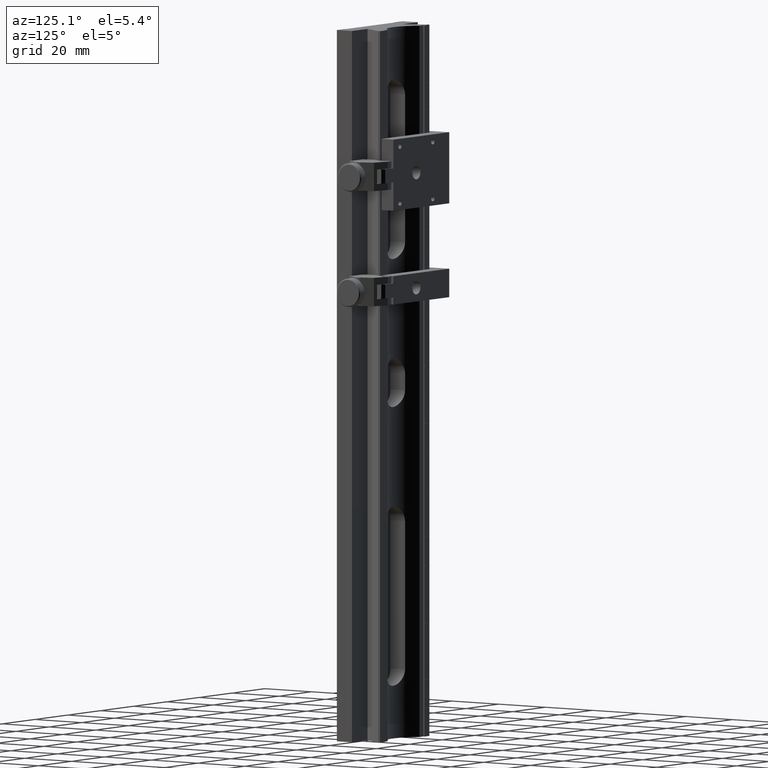
[diagram: clean part render]
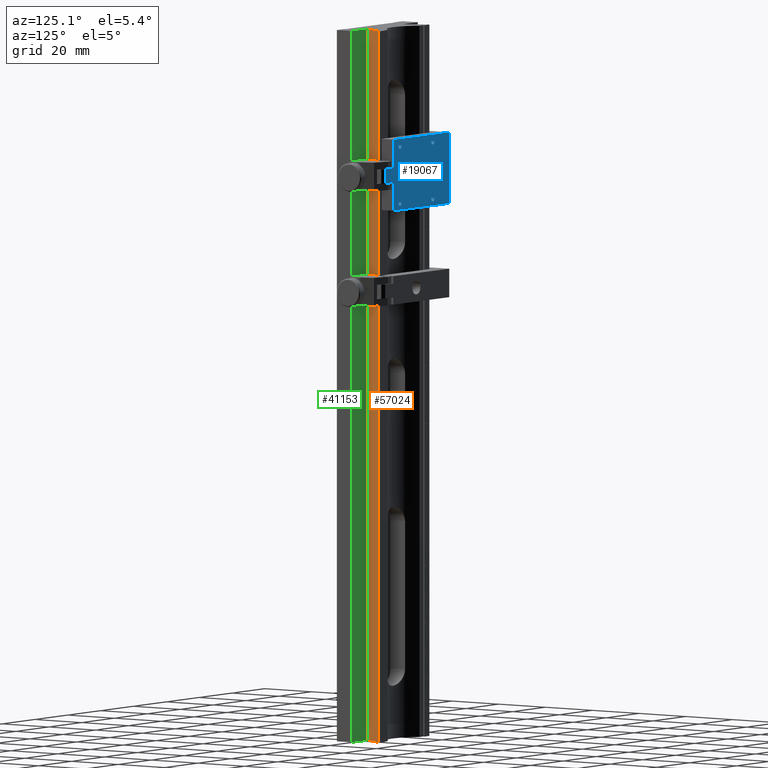
[diagram: same view with three faces highlighted in distinct colors, each labeled with its STEP entity id]
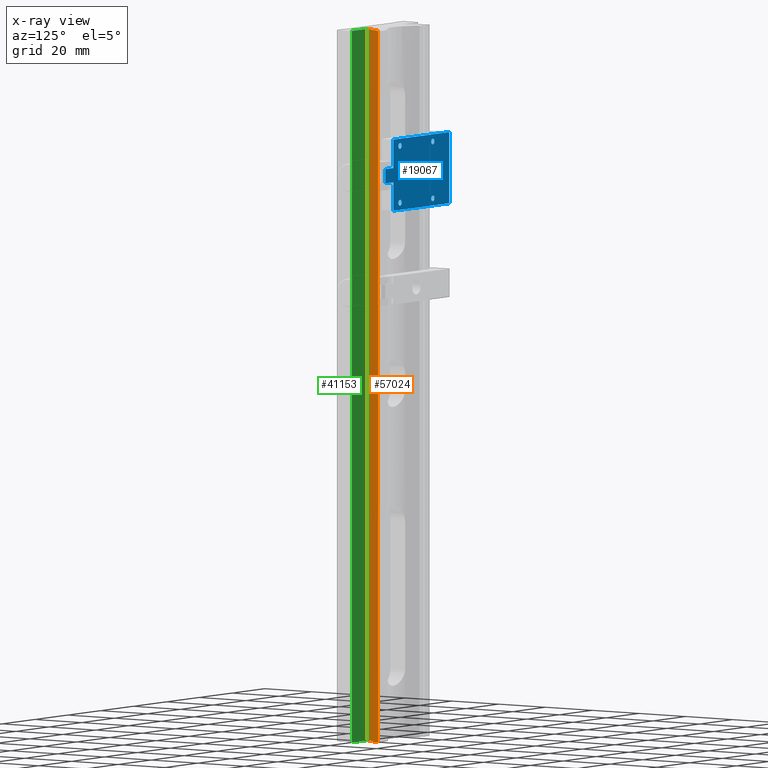
[diagram: x-ray of the same camera — body ghosted, the three highlighted faces saturated]
A machine part, auxiliary view with three faces highlighted in distinct colors.
The next image is the same camera in x-ray (body ghosted, the three faces saturated) — at least one of them is partly hidden behind the body in this view.
Their STEP definitions:

[orange] entity #57024 — the highlighted planar face has unit normal (-0.866, 0.5, 0).
#3482 = VERTEX_POINT ( 'NONE', #76910 ) ;
#4926 = CARTESIAN_POINT ( 'NONE',  ( -6.106594859342999726, 10.67718597128058100, -41.66666666666665009 ) ) ;
#6473 = CARTESIAN_POINT ( 'NONE',  ( -10.51407214745487906, 3.043211375065002944, -125.0000000000000000 ) ) ;
#7787 = CARTESIAN_POINT ( 'NONE',  ( -9.044913051417598382, 5.587869573803525114, -125.0000000000000000 ) ) ;
#8732 = EDGE_CURVE ( 'NONE', #51295, #71722, #48843, .T. ) ;
#9039 = ORIENTED_EDGE ( 'NONE', *, *, #8732, .F. ) ;
#13033 = AXIS2_PLACEMENT_3D ( 'NONE', #17189, #84847, #44503 ) ;
#13546 = B_SPLINE_CURVE_WITH_KNOTS ( 'NONE', 3,
 ( #6473, #68277, #81256, #33349 ),
 .UNSPECIFIED., .F., .F.,
 ( 4, 4 ),
 ( 0.000000000000000000, 1.000000000000000000 ),
 .UNSPECIFIED. ) ;
#17003 = CARTESIAN_POINT ( 'NONE',  ( -10.51407214745487906, 3.043211375065002944, 125.0000000000000000 ) ) ;
#17189 = CARTESIAN_POINT ( 'NONE',  ( -10.51407214745487906, 3.043211375065002500, 125.0000000000000000 ) ) ;
#25099 = CARTESIAN_POINT ( 'NONE',  ( -6.106594859342999726, 10.67718597128058100, 125.0000000000000000 ) ) ;
#30195 = CARTESIAN_POINT ( 'NONE',  ( -7.575753955380298166, 8.132527772542049505, 125.0000000000000000 ) ) ;
#32915 = CARTESIAN_POINT ( 'NONE',  ( -6.106594859342999726, 10.67718597128058100, 125.0000000000000000 ) ) ;
#33349 = CARTESIAN_POINT ( 'NONE',  ( -10.51407214745487906, 3.043211375065002944, 125.0000000000000000 ) ) ;
#34921 = EDGE_CURVE ( 'NONE', #71722, #47797, #78199, .T. ) ;
#35107 = CARTESIAN_POINT ( 'NONE',  ( -7.575753955380319482, 8.132527772542049505, -125.0000000000000000 ) ) ;
#35358 = EDGE_CURVE ( 'NONE', #3482, #47797, #83459, .T. ) ;
#36453 = EDGE_LOOP ( 'NONE', ( #48806, #9039, #48173, #42064 ) ) ;
#38970 = CARTESIAN_POINT ( 'NONE',  ( -6.106594859342999726, 10.67718597128058100, 41.66666666666665009 ) ) ;
#42064 = ORIENTED_EDGE ( 'NONE', *, *, #35358, .T. ) ;
#42266 = CARTESIAN_POINT ( 'NONE',  ( -6.106594859342999726, 10.67718597128058100, -125.0000000000000000 ) ) ;
#43624 = CARTESIAN_POINT ( 'NONE',  ( -10.51407214745487906, 3.043211375065002944, 125.0000000000000000 ) ) ;
#44503 = DIRECTION ( 'NONE',  ( 0.000000000000000000, 0.000000000000000000, 1.000000000000000000 ) ) ;
#44974 = PLANE ( 'NONE',  #13033 ) ;
#47797 = VERTEX_POINT ( 'NONE', #64213 ) ;
#48173 = ORIENTED_EDGE ( 'NONE', *, *, #70462, .F. ) ;
#48806 = ORIENTED_EDGE ( 'NONE', *, *, #34921, .F. ) ;
#48843 = B_SPLINE_CURVE_WITH_KNOTS ( 'NONE', 3,
 ( #43624, #64230, #30195, #57528 ),
 .UNSPECIFIED., .F., .F.,
 ( 4, 4 ),
 ( 0.000000000000000000, 1.000000000000000000 ),
 .UNSPECIFIED. ) ;
#51295 = VERTEX_POINT ( 'NONE', #17003 ) ;
#57024 = ADVANCED_FACE ( 'NONE', ( #64232 ), #44974, .F. ) ;
#57528 = CARTESIAN_POINT ( 'NONE',  ( -6.106594859342999726, 10.67718597128058100, 125.0000000000000000 ) ) ;
#64213 = CARTESIAN_POINT ( 'NONE',  ( -6.106594859342999726, 10.67718597128058100, -125.0000000000000000 ) ) ;
#64230 = CARTESIAN_POINT ( 'NONE',  ( -9.044913051417598382, 5.587869573803525114, 125.0000000000000000 ) ) ;
#64232 = FACE_OUTER_BOUND ( 'NONE', #36453, .T. ) ;
#68277 = CARTESIAN_POINT ( 'NONE',  ( -10.51407214745487906, 3.043211375065002500, -41.66666666666665009 ) ) ;
#70462 = EDGE_CURVE ( 'NONE', #3482, #51295, #13546, .T. ) ;
#71722 = VERTEX_POINT ( 'NONE', #32915 ) ;
#76910 = CARTESIAN_POINT ( 'NONE',  ( -10.51407214745487906, 3.043211375065002944, -125.0000000000000000 ) ) ;
#78199 = B_SPLINE_CURVE_WITH_KNOTS ( 'NONE', 3,
 ( #25099, #38970, #4926, #86880 ),
 .UNSPECIFIED., .F., .F.,
 ( 4, 4 ),
 ( 0.000000000000000000, 1.000000000000000000 ),
 .UNSPECIFIED. ) ;
#81256 = CARTESIAN_POINT ( 'NONE',  ( -10.51407214745487906, 3.043211375065002500, 41.66666666666665009 ) ) ;
#83459 = B_SPLINE_CURVE_WITH_KNOTS ( 'NONE', 3,
 ( #84332, #7787, #35107, #42266 ),
 .UNSPECIFIED., .F., .F.,
 ( 4, 4 ),
 ( 0.000000000000000000, 1.000000000000000000 ),
 .UNSPECIFIED. ) ;
#84332 = CARTESIAN_POINT ( 'NONE',  ( -10.51407214745487906, 3.043211375065002944, -125.0000000000000000 ) ) ;
#84847 = DIRECTION ( 'NONE',  ( -0.8660254037844384856, 0.5000000000000003331, 0.000000000000000000 ) ) ;
#86880 = CARTESIAN_POINT ( 'NONE',  ( -6.106594859342999726, 10.67718597128058100, -125.0000000000000000 ) ) ;

[blue] entity #19067 — the highlighted planar face has unit normal (0, -1, 0).
#805 = DIRECTION ( 'NONE',  ( 0.000000000000000000, 1.000000000000000000, 0.000000000000000000 ) ) ;
#1757 = ORIENTED_EDGE ( 'NONE', *, *, #9718, .F. ) ;
#1914 = CARTESIAN_POINT ( 'NONE',  ( -31.10659485934299795, 16.54321137506498118, 84.57622124473201097 ) ) ;
#2608 = CARTESIAN_POINT ( 'NONE',  ( -2.106594859342999282, 16.54321137506498118, 72.07622124473203939 ) ) ;
#3018 = ORIENTED_EDGE ( 'NONE', *, *, #51470, .T. ) ;
#3048 = DIRECTION ( 'NONE',  ( 0.000000000000000000, 0.000000000000000000, 1.000000000000000000 ) ) ;
#3117 = DIRECTION ( 'NONE',  ( 0.000000000000000000, 1.000000000000000000, 0.000000000000000000 ) ) ;
#5253 = EDGE_CURVE ( 'NONE', #33931, #73885, #27697, .T. ) ;
#6609 = CARTESIAN_POINT ( 'NONE',  ( -11.10659485934299973, 16.54321137506498118, 84.57622124473201097 ) ) ;
#6773 = DIRECTION ( 'NONE',  ( 0.000000000000000000, 0.000000000000000000, 1.000000000000000000 ) ) ;
#7099 = ORIENTED_EDGE ( 'NONE', *, *, #17883, .F. ) ;
#7206 = DIRECTION ( 'NONE',  ( 0.000000000000000000, 1.000000000000000000, 0.000000000000000000 ) ) ;
#9450 = ORIENTED_EDGE ( 'NONE', *, *, #77037, .F. ) ;
#9675 = CARTESIAN_POINT ( 'NONE',  ( -7.106594859343000614, 16.54321137506498118, 54.22920644147402669 ) ) ;
#9718 = EDGE_CURVE ( 'NONE', #16481, #53638, #34022, .T. ) ;
#10109 = LINE ( 'NONE', #9675, #87318 ) ;
#10916 = VERTEX_POINT ( 'NONE', #86759 ) ;
#11204 = FACE_BOUND ( 'NONE', #24821, .T. ) ;
#11810 = ORIENTED_EDGE ( 'NONE', *, *, #75196, .F. ) ;
#12008 = VERTEX_POINT ( 'NONE', #15613 ) ;
#12141 = EDGE_CURVE ( 'NONE', #10916, #31998, #71415, .T. ) ;
#12875 = DIRECTION ( 'NONE',  ( 0.000000000000000000, 1.000000000000000000, 0.000000000000000000 ) ) ;
#14204 = DIRECTION ( 'NONE',  ( 0.000000000000000000, 1.000000000000000000, 0.000000000000000000 ) ) ;
#14694 = CARTESIAN_POINT ( 'NONE',  ( -41.10659485934299795, 16.54321137506498118, 87.07622124473201097 ) ) ;
#14933 = CARTESIAN_POINT ( 'NONE',  ( -21.10659485934299795, 16.54321137506498118, 72.07622124473203939 ) ) ;
#15001 = VERTEX_POINT ( 'NONE', #46557 ) ;
#15613 = CARTESIAN_POINT ( 'NONE',  ( -31.10659485934299795, 16.54321137506498118, 83.55122124473200529 ) ) ;
#15711 = VERTEX_POINT ( 'NONE', #82892 ) ;
#15917 = CIRCLE ( 'NONE', #58828, 1.024999999999998135 ) ;
#16030 = ORIENTED_EDGE ( 'NONE', *, *, #64535, .T. ) ;
#16365 = EDGE_CURVE ( 'NONE', #82510, #15711, #45022, .T. ) ;
#16481 = VERTEX_POINT ( 'NONE', #87549 ) ;
#17883 = EDGE_CURVE ( 'NONE', #12008, #32085, #78035, .T. ) ;
#19067 = ADVANCED_FACE ( 'NONE', ( #73459, #38977, #73896, #66302, #67621, #11204 ), #79287, .F. ) ;
#19183 = CARTESIAN_POINT ( 'NONE',  ( -31.10659485934299795, 16.54321137506498118, 64.57622124473202518 ) ) ;
#20730 = ORIENTED_EDGE ( 'NONE', *, *, #51321, .F. ) ;
#21313 = DIRECTION ( 'NONE',  ( 0.000000000000000000, 0.000000000000000000, 1.000000000000000000 ) ) ;
#21459 = AXIS2_PLACEMENT_3D ( 'NONE', #27550, #80419, #45930 ) ;
#21597 = AXIS2_PLACEMENT_3D ( 'NONE', #64411, #44239, #3048 ) ;
#22852 = AXIS2_PLACEMENT_3D ( 'NONE', #6609, #14204, #47354 ) ;
#24309 = VERTEX_POINT ( 'NONE', #56071 ) ;
#24821 = EDGE_LOOP ( 'NONE', ( #20730, #71560 ) ) ;
#25129 = AXIS2_PLACEMENT_3D ( 'NONE', #1914, #62422, #40919 ) ;
#26783 = ORIENTED_EDGE ( 'NONE', *, *, #16365, .T. ) ;
#26861 = EDGE_CURVE ( 'NONE', #15001, #67040, #84347, .T. ) ;
#27193 = CARTESIAN_POINT ( 'NONE',  ( -7.106594859343000614, 16.54321137506498118, 94.92323604798980341 ) ) ;
#27550 = CARTESIAN_POINT ( 'NONE',  ( -31.10659485934299795, 16.54321137506498118, 64.57622124473202518 ) ) ;
#27697 = LINE ( 'NONE', #55023, #68296 ) ;
#28419 = EDGE_LOOP ( 'NONE', ( #62871, #37210 ) ) ;
#29073 = CARTESIAN_POINT ( 'NONE',  ( -21.10659485934299795, 16.54321137506498118, 74.57622124473201097 ) ) ;
#29609 = CIRCLE ( 'NONE', #48204, 2.500000000000002220 ) ;
#29808 = DIRECTION ( 'NONE',  ( -1.000000000000000000, 0.000000000000000000, 0.000000000000000000 ) ) ;
#29858 = CARTESIAN_POINT ( 'NONE',  ( -7.106594859343000614, 16.54321137506498118, 72.07622124473203939 ) ) ;
#30842 = LINE ( 'NONE', #58171, #37373 ) ;
#31998 = VERTEX_POINT ( 'NONE', #39994 ) ;
#32085 = VERTEX_POINT ( 'NONE', #53889 ) ;
#33865 = DIRECTION ( 'NONE',  ( 0.000000000000000000, 1.000000000000000000, 0.000000000000000000 ) ) ;
#33902 = DIRECTION ( 'NONE',  ( 0.000000000000000000, 0.000000000000000000, -1.000000000000000000 ) ) ;
#33931 = VERTEX_POINT ( 'NONE', #46771 ) ;
#34022 = CIRCLE ( 'NONE', #58510, 1.024999999999998135 ) ;
#37210 = ORIENTED_EDGE ( 'NONE', *, *, #12141, .F. ) ;
#37373 = VECTOR ( 'NONE', #59071, 1000.000000000000000 ) ;
#38120 = VERTEX_POINT ( 'NONE', #14694 ) ;
#38977 = FACE_BOUND ( 'NONE', #62553, .T. ) ;
#39994 = CARTESIAN_POINT ( 'NONE',  ( -11.10659485934299973, 16.54321137506498118, 85.60122124473200245 ) ) ;
#40919 = DIRECTION ( 'NONE',  ( 0.000000000000000000, 0.000000000000000000, 1.000000000000000000 ) ) ;
#40934 = CARTESIAN_POINT ( 'NONE',  ( -7.106594859343000614, 16.54321137506498118, 62.07622124473202518 ) ) ;
#41129 = DIRECTION ( 'NONE',  ( 0.000000000000000000, 0.000000000000000000, 1.000000000000000000 ) ) ;
#41880 = CIRCLE ( 'NONE', #87676, 1.024999999999998135 ) ;
#42950 = CIRCLE ( 'NONE', #78752, 1.024999999999998135 ) ;
#43253 = ORIENTED_EDGE ( 'NONE', *, *, #74456, .F. ) ;
#43568 = VECTOR ( 'NONE', #29808, 1000.000000000000000 ) ;
#44037 = LINE ( 'NONE', #77655, #87322 ) ;
#44145 = DIRECTION ( 'NONE',  ( 0.000000000000000000, 0.000000000000000000, 1.000000000000000000 ) ) ;
#44239 = DIRECTION ( 'NONE',  ( 0.000000000000000000, 1.000000000000000000, 0.000000000000000000 ) ) ;
#44462 = CIRCLE ( 'NONE', #21597, 1.024999999999998135 ) ;
#45022 = LINE ( 'NONE', #72345, #43568 ) ;
#45930 = DIRECTION ( 'NONE',  ( 0.000000000000000000, 0.000000000000000000, 1.000000000000000000 ) ) ;
#46253 = CARTESIAN_POINT ( 'NONE',  ( -7.106594859343000614, 16.54321137506498118, 72.07622124473203939 ) ) ;
#46557 = CARTESIAN_POINT ( 'NONE',  ( -31.10659485934299795, 16.54321137506498118, 63.55122124473203371 ) ) ;
#46771 = CARTESIAN_POINT ( 'NONE',  ( -7.106594859343000614, 16.54321137506498118, 77.07622124473201097 ) ) ;
#47009 = CARTESIAN_POINT ( 'NONE',  ( -41.10659485934299795, 16.54321137506498118, 87.07622124473201097 ) ) ;
#47354 = DIRECTION ( 'NONE',  ( 0.000000000000000000, 0.000000000000000000, 1.000000000000000000 ) ) ;
#47364 = VECTOR ( 'NONE', #67529, 1000.000000000000000 ) ;
#47982 = ORIENTED_EDGE ( 'NONE', *, *, #26861, .F. ) ;
#48204 = AXIS2_PLACEMENT_3D ( 'NONE', #29073, #70697, #63545 ) ;
#48913 = VECTOR ( 'NONE', #33902, 1000.000000000000000 ) ;
#49152 = CARTESIAN_POINT ( 'NONE',  ( -21.10659485934299795, 16.54321137506498118, 77.07622124473201097 ) ) ;
#51321 = EDGE_CURVE ( 'NONE', #62101, #74940, #55130, .T. ) ;
#51470 = EDGE_CURVE ( 'NONE', #77934, #70679, #71485, .T. ) ;
#52309 = ORIENTED_EDGE ( 'NONE', *, *, #55855, .F. ) ;
#53260 = DIRECTION ( 'NONE',  ( 1.000000000000000000, 0.000000000000000000, 0.000000000000000000 ) ) ;
#53638 = VERTEX_POINT ( 'NONE', #72102 ) ;
#53889 = CARTESIAN_POINT ( 'NONE',  ( -31.10659485934299795, 16.54321137506498118, 85.60122124473200245 ) ) ;
#54088 = DIRECTION ( 'NONE',  ( 0.000000000000000000, 0.000000000000000000, 1.000000000000000000 ) ) ;
#54698 = EDGE_CURVE ( 'NONE', #31998, #10916, #44462, .T. ) ;
#55023 = CARTESIAN_POINT ( 'NONE',  ( -7.106594859343000614, 16.54321137506498118, 77.07622124473201097 ) ) ;
#55130 = CIRCLE ( 'NONE', #60826, 2.500000000000002220 ) ;
#55362 = CARTESIAN_POINT ( 'NONE',  ( -11.10659485934299973, 16.54321137506498118, 64.57622124473202518 ) ) ;
#55855 = EDGE_CURVE ( 'NONE', #33931, #24309, #10109, .T. ) ;
#56071 = CARTESIAN_POINT ( 'NONE',  ( -7.106594859343000614, 16.54321137506498118, 87.07622124473201097 ) ) ;
#57324 = DIRECTION ( 'NONE',  ( 0.000000000000000000, 0.000000000000000000, 1.000000000000000000 ) ) ;
#58171 = CARTESIAN_POINT ( 'NONE',  ( -2.106594859342999282, 16.54321137506498118, 87.07622124473201097 ) ) ;
#58510 = AXIS2_PLACEMENT_3D ( 'NONE', #61742, #805, #41129 ) ;
#58568 = ORIENTED_EDGE ( 'NONE', *, *, #78127, .F. ) ;
#58828 = AXIS2_PLACEMENT_3D ( 'NONE', #68156, #7206, #6773 ) ;
#59071 = DIRECTION ( 'NONE',  ( 0.000000000000000000, 0.000000000000000000, -1.000000000000000000 ) ) ;
#60746 = EDGE_LOOP ( 'NONE', ( #43253, #1757 ) ) ;
#60826 = AXIS2_PLACEMENT_3D ( 'NONE', #78797, #3117, #57324 ) ;
#61742 = CARTESIAN_POINT ( 'NONE',  ( -11.10659485934299973, 16.54321137506498118, 64.57622124473202518 ) ) ;
#62101 = VERTEX_POINT ( 'NONE', #49152 ) ;
#62422 = DIRECTION ( 'NONE',  ( 0.000000000000000000, 1.000000000000000000, 0.000000000000000000 ) ) ;
#62553 = EDGE_LOOP ( 'NONE', ( #11810, #7099 ) ) ;
#62871 = ORIENTED_EDGE ( 'NONE', *, *, #54698, .F. ) ;
#63545 = DIRECTION ( 'NONE',  ( 0.000000000000000000, 0.000000000000000000, 1.000000000000000000 ) ) ;
#64411 = CARTESIAN_POINT ( 'NONE',  ( -11.10659485934299973, 16.54321137506498118, 84.57622124473201097 ) ) ;
#64535 = EDGE_CURVE ( 'NONE', #70679, #82510, #73806, .T. ) ;
#65424 = EDGE_CURVE ( 'NONE', #73885, #77934, #30842, .T. ) ;
#65839 = DIRECTION ( 'NONE',  ( 0.000000000000000000, -1.000000000000000000, 0.000000000000000000 ) ) ;
#66018 = CARTESIAN_POINT ( 'NONE',  ( -2.106594859342999282, 16.54321137506498118, 77.07622124473201097 ) ) ;
#66107 = EDGE_CURVE ( 'NONE', #24309, #38120, #44037, .T. ) ;
#66302 = FACE_BOUND ( 'NONE', #60746, .T. ) ;
#66319 = EDGE_LOOP ( 'NONE', ( #82337, #73035, #3018, #16030, #26783, #9450, #68547, #52309 ) ) ;
#67040 = VERTEX_POINT ( 'NONE', #68143 ) ;
#67529 = DIRECTION ( 'NONE',  ( 0.000000000000000000, 0.000000000000000000, -1.000000000000000000 ) ) ;
#67621 = FACE_BOUND ( 'NONE', #28419, .T. ) ;
#67969 = LINE ( 'NONE', #69283, #48913 ) ;
#68143 = CARTESIAN_POINT ( 'NONE',  ( -31.10659485934299795, 16.54321137506498118, 65.60122124473203087 ) ) ;
#68156 = CARTESIAN_POINT ( 'NONE',  ( -31.10659485934299795, 16.54321137506498118, 84.57622124473201097 ) ) ;
#68296 = VECTOR ( 'NONE', #53260, 1000.000000000000000 ) ;
#68547 = ORIENTED_EDGE ( 'NONE', *, *, #66107, .F. ) ;
#69283 = CARTESIAN_POINT ( 'NONE',  ( -41.10659485934299795, 16.54321137506498118, 87.07622124473201097 ) ) ;
#70679 = VERTEX_POINT ( 'NONE', #46253 ) ;
#70697 = DIRECTION ( 'NONE',  ( 0.000000000000000000, 1.000000000000000000, 0.000000000000000000 ) ) ;
#70831 = VECTOR ( 'NONE', #77328, 1000.000000000000000 ) ;
#70938 = DIRECTION ( 'NONE',  ( -1.000000000000000000, 0.000000000000000000, 0.000000000000000000 ) ) ;
#71415 = CIRCLE ( 'NONE', #22852, 1.024999999999998135 ) ;
#71485 = LINE ( 'NONE', #29858, #70831 ) ;
#71560 = ORIENTED_EDGE ( 'NONE', *, *, #87987, .F. ) ;
#72102 = CARTESIAN_POINT ( 'NONE',  ( -11.10659485934299973, 16.54321137506498118, 65.60122124473203087 ) ) ;
#72345 = CARTESIAN_POINT ( 'NONE',  ( -41.10659485934299795, 16.54321137506498118, 62.07622124473202518 ) ) ;
#73035 = ORIENTED_EDGE ( 'NONE', *, *, #65424, .T. ) ;
#73459 = FACE_OUTER_BOUND ( 'NONE', #66319, .T. ) ;
#73806 = LINE ( 'NONE', #27193, #47364 ) ;
#73885 = VERTEX_POINT ( 'NONE', #66018 ) ;
#73896 = FACE_BOUND ( 'NONE', #86017, .T. ) ;
#74321 = DIRECTION ( 'NONE',  ( -1.000000000000000000, 0.000000000000000000, 0.000000000000000000 ) ) ;
#74456 = EDGE_CURVE ( 'NONE', #53638, #16481, #42950, .T. ) ;
#74940 = VERTEX_POINT ( 'NONE', #14933 ) ;
#75196 = EDGE_CURVE ( 'NONE', #32085, #12008, #15917, .T. ) ;
#77037 = EDGE_CURVE ( 'NONE', #38120, #15711, #67969, .T. ) ;
#77328 = DIRECTION ( 'NONE',  ( -1.000000000000000000, 0.000000000000000000, 0.000000000000000000 ) ) ;
#77655 = CARTESIAN_POINT ( 'NONE',  ( -41.10659485934299795, 16.54321137506498118, 87.07622124473201097 ) ) ;
#77926 = AXIS2_PLACEMENT_3D ( 'NONE', #47009, #65839, #74321 ) ;
#77934 = VERTEX_POINT ( 'NONE', #2608 ) ;
#78035 = CIRCLE ( 'NONE', #25129, 1.024999999999998135 ) ;
#78127 = EDGE_CURVE ( 'NONE', #67040, #15001, #41880, .T. ) ;
#78752 = AXIS2_PLACEMENT_3D ( 'NONE', #55362, #33865, #21313 ) ;
#78797 = CARTESIAN_POINT ( 'NONE',  ( -21.10659485934299795, 16.54321137506498118, 74.57622124473201097 ) ) ;
#79287 = PLANE ( 'NONE',  #77926 ) ;
#80419 = DIRECTION ( 'NONE',  ( 0.000000000000000000, 1.000000000000000000, 0.000000000000000000 ) ) ;
#82337 = ORIENTED_EDGE ( 'NONE', *, *, #5253, .T. ) ;
#82510 = VERTEX_POINT ( 'NONE', #40934 ) ;
#82892 = CARTESIAN_POINT ( 'NONE',  ( -41.10659485934299795, 16.54321137506498118, 62.07622124473202518 ) ) ;
#84347 = CIRCLE ( 'NONE', #21459, 1.024999999999998135 ) ;
#86017 = EDGE_LOOP ( 'NONE', ( #58568, #47982 ) ) ;
#86759 = CARTESIAN_POINT ( 'NONE',  ( -11.10659485934299973, 16.54321137506498118, 83.55122124473200529 ) ) ;
#87318 = VECTOR ( 'NONE', #44145, 1000.000000000000000 ) ;
#87322 = VECTOR ( 'NONE', #70938, 1000.000000000000000 ) ;
#87549 = CARTESIAN_POINT ( 'NONE',  ( -11.10659485934299973, 16.54321137506498118, 63.55122124473203371 ) ) ;
#87676 = AXIS2_PLACEMENT_3D ( 'NONE', #19183, #12875, #54088 ) ;
#87987 = EDGE_CURVE ( 'NONE', #74940, #62101, #29609, .T. ) ;

[green] entity #41153 — the highlighted planar face has unit normal (0, -1, 0).
#2987 = B_SPLINE_CURVE_WITH_KNOTS ( 'NONE', 3,
 ( #22444, #49751, #22870, #8535 ),
 .UNSPECIFIED., .F., .F.,
 ( 4, 4 ),
 ( 0.000000000000000000, 1.000000000000000000 ),
 .UNSPECIFIED. ) ;
#3482 = VERTEX_POINT ( 'NONE', #76910 ) ;
#4835 = CARTESIAN_POINT ( 'NONE',  ( -4.242420622046949141, 3.043211375064999835, 125.0000000000000000 ) ) ;
#5130 = PLANE ( 'NONE',  #78528 ) ;
#6407 = ORIENTED_EDGE ( 'NONE', *, *, #15244, .F. ) ;
#6473 = CARTESIAN_POINT ( 'NONE',  ( -10.51407214745487906, 3.043211375065002944, -125.0000000000000000 ) ) ;
#8535 = CARTESIAN_POINT ( 'NONE',  ( -10.51407214745487906, 3.043211375065002944, -125.0000000000000000 ) ) ;
#12278 = VERTEX_POINT ( 'NONE', #70157 ) ;
#13546 = B_SPLINE_CURVE_WITH_KNOTS ( 'NONE', 3,
 ( #6473, #68277, #81256, #33349 ),
 .UNSPECIFIED., .F., .F.,
 ( 4, 4 ),
 ( 0.000000000000000000, 1.000000000000000000 ),
 .UNSPECIFIED. ) ;
#15055 = CARTESIAN_POINT ( 'NONE',  ( -1.106594859342998394, 3.043211375065005164, 125.0000000000000000 ) ) ;
#15244 = EDGE_CURVE ( 'NONE', #12278, #69011, #52098, .T. ) ;
#17003 = CARTESIAN_POINT ( 'NONE',  ( -10.51407214745487906, 3.043211375065002944, 125.0000000000000000 ) ) ;
#19034 = DIRECTION ( 'NONE',  ( 0.000000000000000000, 0.000000000000000000, -1.000000000000000000 ) ) ;
#21339 = EDGE_CURVE ( 'NONE', #69011, #51295, #37346, .T. ) ;
#22444 = CARTESIAN_POINT ( 'NONE',  ( -1.106594859342998394, 3.043211375065005164, -125.0000000000000000 ) ) ;
#22870 = CARTESIAN_POINT ( 'NONE',  ( -7.378246384750899445, 3.043211375065003388, -125.0000000000000000 ) ) ;
#32583 = CARTESIAN_POINT ( 'NONE',  ( -1.106594859342998394, 3.043211375065005164, 125.0000000000000000 ) ) ;
#33349 = CARTESIAN_POINT ( 'NONE',  ( -10.51407214745487906, 3.043211375065002944, 125.0000000000000000 ) ) ;
#37346 = B_SPLINE_CURVE_WITH_KNOTS ( 'NONE', 3,
 ( #32583, #4835, #87228, #53215 ),
 .UNSPECIFIED., .F., .F.,
 ( 4, 4 ),
 ( 0.000000000000000000, 1.000000000000000000 ),
 .UNSPECIFIED. ) ;
#41153 = ADVANCED_FACE ( 'NONE', ( #86662 ), #5130, .F. ) ;
#49751 = CARTESIAN_POINT ( 'NONE',  ( -4.242420622046949141, 3.043211375065004276, -125.0000000000000000 ) ) ;
#51295 = VERTEX_POINT ( 'NONE', #17003 ) ;
#51716 = CARTESIAN_POINT ( 'NONE',  ( -1.106594859342998394, 3.043211375064999835, -41.66666666666665009 ) ) ;
#52098 = B_SPLINE_CURVE_WITH_KNOTS ( 'NONE', 3,
 ( #65164, #51716, #74523, #60674 ),
 .UNSPECIFIED., .F., .F.,
 ( 4, 4 ),
 ( 0.000000000000000000, 1.000000000000000000 ),
 .UNSPECIFIED. ) ;
#53215 = CARTESIAN_POINT ( 'NONE',  ( -10.51407214745487906, 3.043211375065002944, 125.0000000000000000 ) ) ;
#54599 = ORIENTED_EDGE ( 'NONE', *, *, #21339, .F. ) ;
#59788 = DIRECTION ( 'NONE',  ( 2.449293598294704935E-16, -1.000000000000000000, 0.000000000000000000 ) ) ;
#60674 = CARTESIAN_POINT ( 'NONE',  ( -1.106594859342998394, 3.043211375065005164, 125.0000000000000000 ) ) ;
#65164 = CARTESIAN_POINT ( 'NONE',  ( -1.106594859342998394, 3.043211375065005164, -125.0000000000000000 ) ) ;
#66715 = EDGE_LOOP ( 'NONE', ( #76784, #54599, #6407, #78474 ) ) ;
#68277 = CARTESIAN_POINT ( 'NONE',  ( -10.51407214745487906, 3.043211375065002500, -41.66666666666665009 ) ) ;
#69011 = VERTEX_POINT ( 'NONE', #15055 ) ;
#70157 = CARTESIAN_POINT ( 'NONE',  ( -1.106594859342998394, 3.043211375065005164, -125.0000000000000000 ) ) ;
#70462 = EDGE_CURVE ( 'NONE', #3482, #51295, #13546, .T. ) ;
#74523 = CARTESIAN_POINT ( 'NONE',  ( -1.106594859342998394, 3.043211375064999835, 41.66666666666665009 ) ) ;
#76784 = ORIENTED_EDGE ( 'NONE', *, *, #70462, .T. ) ;
#76910 = CARTESIAN_POINT ( 'NONE',  ( -10.51407214745487906, 3.043211375065002944, -125.0000000000000000 ) ) ;
#78474 = ORIENTED_EDGE ( 'NONE', *, *, #86617, .T. ) ;
#78528 = AXIS2_PLACEMENT_3D ( 'NONE', #79039, #59788, #19034 ) ;
#79039 = CARTESIAN_POINT ( 'NONE',  ( -1.106594859342998394, 3.043211375065004720, 125.0000000000000000 ) ) ;
#81256 = CARTESIAN_POINT ( 'NONE',  ( -10.51407214745487906, 3.043211375065002500, 41.66666666666665009 ) ) ;
#86617 = EDGE_CURVE ( 'NONE', #12278, #3482, #2987, .T. ) ;
#86662 = FACE_OUTER_BOUND ( 'NONE', #66715, .T. ) ;
#87228 = CARTESIAN_POINT ( 'NONE',  ( -7.378246384750918097, 3.043211375064999835, 125.0000000000000000 ) ) ;